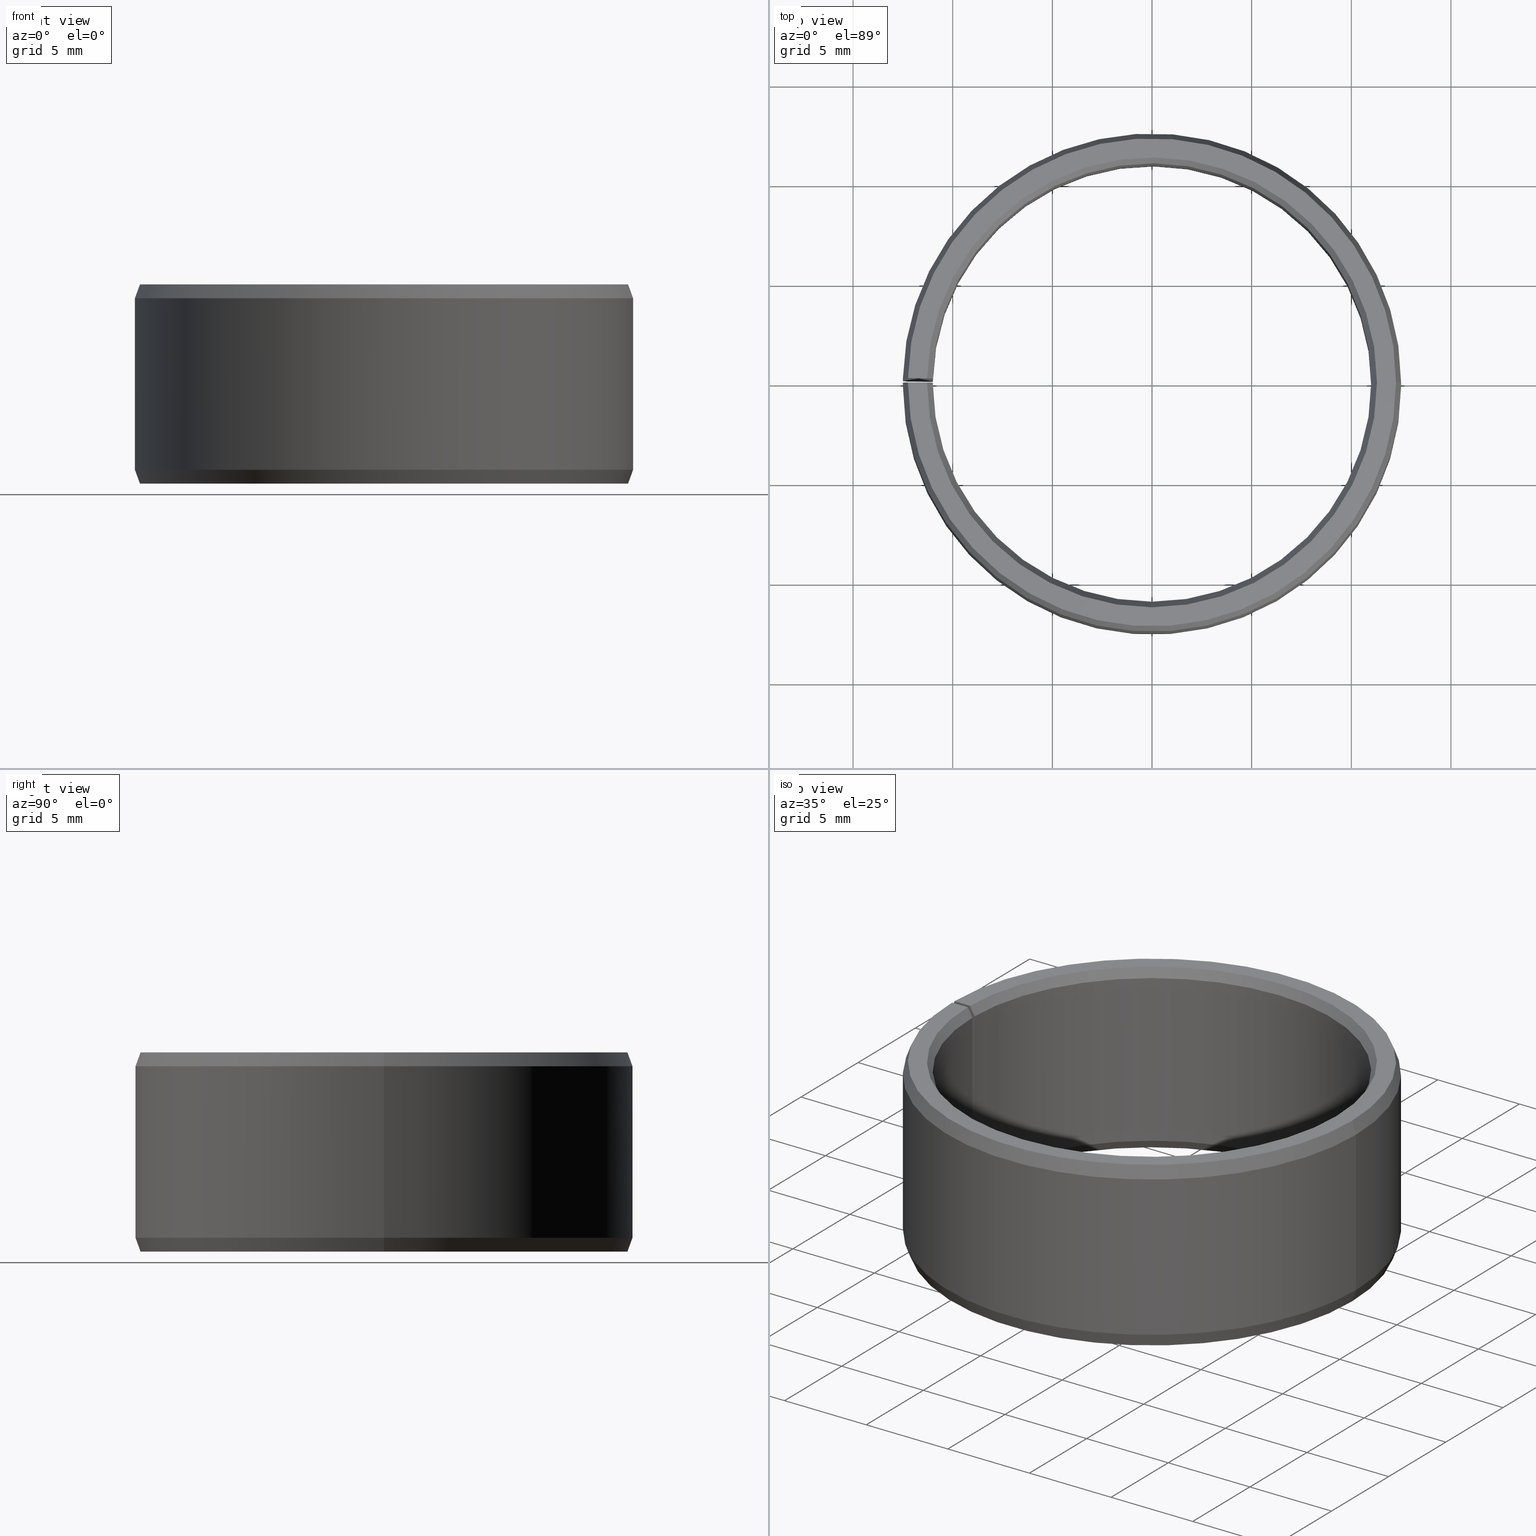
[diagram: canonical four-view strip — front | top / right | iso, engineering-drawing reading convention]
A machine part, canonical four-view strip (front | top / right | iso — engineering-drawing reading convention). The complete STEP part file that produces these views, byte-faithful:
ISO-10303-21;
HEADER;
FILE_DESCRIPTION(('STEP AP203'),'1');
FILE_NAME('400-BM2210LMB.stp','2016-09-20T00:43:16',(' '),(' '),'Spatial InterOp 3D',' ',' ');
FILE_SCHEMA(('CONFIG_CONTROL_DESIGN'));
ENDSEC;
DATA;
#1=DESIGN_CONTEXT('',#27,'design');
#2=APPLICATION_PROTOCOL_DEFINITION('INTERNATIONAL STANDARD','config_control_design',1994,#27);
#3=PRODUCT_CATEGORY_RELATIONSHIP('NONE','NONE',#28,#29);
#4=DATE_AND_TIME(#30,#31);
#5=DATE_TIME_ROLE('creation_date');
#6=DATE_TIME_ROLE('classification_date');
#7=PERSON_AND_ORGANIZATION_ROLE('creator');
#8=PERSON_AND_ORGANIZATION_ROLE('design_supplier');
#9=PERSON_AND_ORGANIZATION_ROLE('classification_officer');
#10=PERSON_AND_ORGANIZATION_ROLE('design_owner');
#11=APPROVAL_PERSON_ORGANIZATION(#32,#33,#34);
#12=APPROVAL_DATE_TIME(#4,#33);
#13=CC_DESIGN_APPROVAL(#33,(#35,#36,#37));
#14=CC_DESIGN_DATE_AND_TIME_ASSIGNMENT(#4,#5,(#37));
#15=CC_DESIGN_DATE_AND_TIME_ASSIGNMENT(#4,#6,(#35));
#16=CC_DESIGN_PERSON_AND_ORGANIZATION_ASSIGNMENT(#32,#10,(#38));
#17=CC_DESIGN_PERSON_AND_ORGANIZATION_ASSIGNMENT(#32,#7,(#37));
#18=CC_DESIGN_PERSON_AND_ORGANIZATION_ASSIGNMENT(#32,#7,(#36));
#19=CC_DESIGN_PERSON_AND_ORGANIZATION_ASSIGNMENT(#32,#8,(#36));
#20=CC_DESIGN_SECURITY_CLASSIFICATION(#35,(#36));
#21=CC_DESIGN_PERSON_AND_ORGANIZATION_ASSIGNMENT(#32,#9,(#35));
#22=SHAPE_DEFINITION_REPRESENTATION(#39,#40);
#23= (GEOMETRIC_REPRESENTATION_CONTEXT(3)GLOBAL_UNCERTAINTY_ASSIGNED_CONTEXT((#43))GLOBAL_UNIT_ASSIGNED_CONTEXT((#45,#46,#47))REPRESENTATION_CONTEXT('NONE','WORKSPACE'));
#27=APPLICATION_CONTEXT('CONFIGURATION CONTROLLED 3D DESIGNS OF MECHANICAL PARTS AND ASSEMBLIES');
#28=PRODUCT_CATEGORY('part','NONE');
#29=PRODUCT_RELATED_PRODUCT_CATEGORY('detail',' ',(#38));
#30=CALENDAR_DATE(2016,20,8);
#31=LOCAL_TIME(2,43,16.0,#49);
#32=PERSON_AND_ORGANIZATION(#50,#51);
#33=APPROVAL(#52,'SOLID MODEL');
#34=APPROVAL_ROLE('APPROVED');
#35=SECURITY_CLASSIFICATION('','',#53);
#36=PRODUCT_DEFINITION_FORMATION_WITH_SPECIFIED_SOURCE(' ','NONE',#38,.NOT_KNOWN.);
#37=PRODUCT_DEFINITION('NONE','NONE',#36,#1);
#38=PRODUCT('1','1','PART-1-DESC',(#54));
#39=PRODUCT_DEFINITION_SHAPE('NONE','NONE',#37);
#40=ADVANCED_BREP_SHAPE_REPRESENTATION('1',(#55,#56),#23);
#43=UNCERTAINTY_MEASURE_WITH_UNIT(LENGTH_MEASURE(1.0E-006),#45,'','');
#45= (CONVERSION_BASED_UNIT('MILLIMETRE',#59)LENGTH_UNIT()NAMED_UNIT(#62));
#46= (NAMED_UNIT(#64)PLANE_ANGLE_UNIT()SI_UNIT($,.RADIAN.));
#47= (NAMED_UNIT(#64)SOLID_ANGLE_UNIT()SI_UNIT($,.STERADIAN.));
#49=COORDINATED_UNIVERSAL_TIME_OFFSET(1,0,.AHEAD.);
#50=PERSON('','UNSPECIFIED',$,$,$,$);
#51=ORGANIZATION('UNSPECIFIED','UNSPECIFIED','UNSPECIFIED');
#52=APPROVAL_STATUS('approved');
#53=SECURITY_CLASSIFICATION_LEVEL('unclassified');
#54=MECHANICAL_CONTEXT('',#27,'mechanical');
#55=MANIFOLD_SOLID_BREP('1',#70);
#56=AXIS2_PLACEMENT_3D('',#71,#72,#73);
#59=LENGTH_MEASURE_WITH_UNIT(LENGTH_MEASURE(1.0),#74);
#62=DIMENSIONAL_EXPONENTS(1.0,0.0,0.0,0.0,0.0,0.0,0.0);
#64=DIMENSIONAL_EXPONENTS(0.0,0.0,0.0,0.0,0.0,0.0,0.0);
#70=CLOSED_SHELL('',(#75,#76,#77,#78,#79,#80,#81,#82,#83,#84,#85,#86,#87,#88,#89,#90));
#71=CARTESIAN_POINT('',(0.0,0.0,0.0));
#72=DIRECTION('',(0.0,0.0,1.0));
#73=DIRECTION('',(1.0,0.0,0.0));
#74= (NAMED_UNIT(#62)LENGTH_UNIT()SI_UNIT(.MILLI.,.METRE.));
#75=ADVANCED_FACE('',(#92),#93,.F.);
#76=ADVANCED_FACE('',(#94),#95,.F.);
#77=ADVANCED_FACE('',(#96),#97,.T.);
#78=ADVANCED_FACE('',(#98),#99,.T.);
#79=ADVANCED_FACE('',(#100),#101,.T.);
#80=ADVANCED_FACE('',(#102),#103,.F.);
#81=ADVANCED_FACE('',(#104),#105,.F.);
#82=ADVANCED_FACE('',(#106),#107,.T.);
#83=ADVANCED_FACE('',(#108),#109,.T.);
#84=ADVANCED_FACE('',(#110),#111,.T.);
#85=ADVANCED_FACE('',(#112),#113,.T.);
#86=ADVANCED_FACE('',(#114),#115,.T.);
#87=ADVANCED_FACE('',(#116),#117,.F.);
#88=ADVANCED_FACE('',(#118),#119,.F.);
#89=ADVANCED_FACE('',(#120),#121,.T.);
#90=ADVANCED_FACE('',(#122),#123,.F.);
#92=FACE_OUTER_BOUND('',#124,.T.);
#93=CYLINDRICAL_SURFACE('',#125,11.0);
#94=FACE_OUTER_BOUND('',#126,.T.);
#95=CONICAL_SURFACE('',#127,11.1443375672974,0.523598775598306);
#96=FACE_OUTER_BOUND('',#128,.T.);
#97=CONICAL_SURFACE('',#129,12.3726104180068,0.349065850398867);
#98=FACE_OUTER_BOUND('',#130,.T.);
#99=CYLINDRICAL_SURFACE('',#131,12.5);
#100=FACE_OUTER_BOUND('',#132,.T.);
#101=CONICAL_SURFACE('',#133,12.3726104180068,0.349065850398867);
#102=FACE_OUTER_BOUND('',#134,.T.);
#103=CONICAL_SURFACE('',#135,11.1443375672974,0.523598775598309);
#104=FACE_OUTER_BOUND('',#136,.T.);
#105=CONICAL_SURFACE('',#137,11.1443375672974,0.523598775598309);
#106=FACE_OUTER_BOUND('',#138,.T.);
#107=PLANE('',#139);
#108=FACE_OUTER_BOUND('',#140,.T.);
#109=CONICAL_SURFACE('',#141,12.3726104180068,0.349065850398867);
#110=FACE_OUTER_BOUND('',#142,.T.);
#111=CYLINDRICAL_SURFACE('',#143,12.5);
#112=FACE_OUTER_BOUND('',#144,.T.);
#113=CONICAL_SURFACE('',#145,12.3726104180068,0.349065850398867);
#114=FACE_OUTER_BOUND('',#146,.T.);
#115=PLANE('',#147);
#116=FACE_OUTER_BOUND('',#148,.T.);
#117=CONICAL_SURFACE('',#149,11.1443375672974,0.523598775598306);
#118=FACE_OUTER_BOUND('',#150,.T.);
#119=CYLINDRICAL_SURFACE('',#151,11.0);
#120=FACE_OUTER_BOUND('',#152,.T.);
#121=PLANE('',#153);
#122=FACE_OUTER_BOUND('',#154,.T.);
#123=PLANE('',#155);
#124=EDGE_LOOP('',(#156,#157,#158,#159));
#125=AXIS2_PLACEMENT_3D('',#160,#161,#162);
#126=EDGE_LOOP('',(#163,#164,#165,#166));
#127=AXIS2_PLACEMENT_3D('',#167,#168,#169);
#128=EDGE_LOOP('',(#170,#171,#172,#173));
#129=AXIS2_PLACEMENT_3D('',#174,#175,#176);
#130=EDGE_LOOP('',(#177,#178,#179,#180));
#131=AXIS2_PLACEMENT_3D('',#181,#182,#183);
#132=EDGE_LOOP('',(#184,#185,#186,#187));
#133=AXIS2_PLACEMENT_3D('',#188,#189,#190);
#134=EDGE_LOOP('',(#191,#192,#193,#194));
#135=AXIS2_PLACEMENT_3D('',#195,#196,#197);
#136=EDGE_LOOP('',(#198,#199,#200,#201));
#137=AXIS2_PLACEMENT_3D('',#202,#203,#204);
#138=EDGE_LOOP('',(#205,#206,#207,#208,#209,#210));
#139=AXIS2_PLACEMENT_3D('',#211,#212,#213);
#140=EDGE_LOOP('',(#214,#215,#216,#217));
#141=AXIS2_PLACEMENT_3D('',#218,#219,#220);
#142=EDGE_LOOP('',(#221,#222,#223,#224));
#143=AXIS2_PLACEMENT_3D('',#225,#226,#227);
#144=EDGE_LOOP('',(#228,#229,#230,#231));
#145=AXIS2_PLACEMENT_3D('',#232,#233,#234);
#146=EDGE_LOOP('',(#235,#236,#237,#238,#239,#240));
#147=AXIS2_PLACEMENT_3D('',#241,#242,#243);
#148=EDGE_LOOP('',(#244,#245,#246,#247));
#149=AXIS2_PLACEMENT_3D('',#248,#249,#250);
#150=EDGE_LOOP('',(#251,#252,#253,#254));
#151=AXIS2_PLACEMENT_3D('',#255,#256,#257);
#152=EDGE_LOOP('',(#258,#259,#260,#261,#262,#263,#264,#265));
#153=AXIS2_PLACEMENT_3D('',#266,#267,#268);
#154=EDGE_LOOP('',(#269,#270,#271,#272,#273,#274,#275,#276));
#155=AXIS2_PLACEMENT_3D('',#277,#278,#279);
#156=ORIENTED_EDGE('',*,*,#280,.F.);
#157=ORIENTED_EDGE('',*,*,#281,.T.);
#158=ORIENTED_EDGE('',*,*,#282,.T.);
#159=ORIENTED_EDGE('',*,*,#283,.F.);
#160=CARTESIAN_POINT('',(3.09684024814451E-015,-3.50247784057173E-015,5.0));
#161=DIRECTION('',(5.48707263966375E-016,-6.09939603923743E-016,1.0));
#162=DIRECTION('',(-1.0,1.89882151931499E-015,5.48707263966376E-016));
#163=ORIENTED_EDGE('',*,*,#284,.F.);
#164=ORIENTED_EDGE('',*,*,#285,.T.);
#165=ORIENTED_EDGE('',*,*,#286,.T.);
#166=ORIENTED_EDGE('',*,*,#281,.F.);
#167=CARTESIAN_POINT('',(5.70319975198479E-015,-6.10883734441202E-015,9.75));
#168=DIRECTION('',(5.48707263966375E-016,-6.09939603923743E-016,1.0));
#169=DIRECTION('',(-1.0,1.89882151931499E-015,5.48707263966376E-016));
#170=ORIENTED_EDGE('',*,*,#287,.F.);
#171=ORIENTED_EDGE('',*,*,#288,.F.);
#172=ORIENTED_EDGE('',*,*,#289,.F.);
#173=ORIENTED_EDGE('',*,*,#290,.T.);
#174=CARTESIAN_POINT('',(5.64832902558815E-015,-6.05396661801538E-015,9.65));
#175=DIRECTION('',(-5.48707263966375E-016,6.09939603923743E-016,-1.0));
#176=DIRECTION('',(-1.0,1.89882151931499E-015,5.48707263966376E-016));
#177=ORIENTED_EDGE('',*,*,#291,.F.);
#178=ORIENTED_EDGE('',*,*,#290,.F.);
#179=ORIENTED_EDGE('',*,*,#292,.F.);
#180=ORIENTED_EDGE('',*,*,#293,.T.);
#181=CARTESIAN_POINT('',(3.09684024814451E-015,-3.50247784057173E-015,5.0));
#182=DIRECTION('',(5.48707263966375E-016,-6.09939603923743E-016,1.0));
#183=DIRECTION('',(-1.0,1.89882151931499E-015,5.48707263966376E-016));
#184=ORIENTED_EDGE('',*,*,#294,.F.);
#185=ORIENTED_EDGE('',*,*,#293,.F.);
#186=ORIENTED_EDGE('',*,*,#295,.F.);
#187=ORIENTED_EDGE('',*,*,#296,.T.);
#188=CARTESIAN_POINT('',(5.45351470700869E-016,-9.50989063128085E-016,0.350000000000002));
#189=DIRECTION('',(5.48707263966375E-016,-6.09939603923743E-016,1.0));
#190=DIRECTION('',(-1.0,1.89882151931499E-015,5.48707263966376E-016));
#191=ORIENTED_EDGE('',*,*,#297,.F.);
#192=ORIENTED_EDGE('',*,*,#283,.T.);
#193=ORIENTED_EDGE('',*,*,#298,.T.);
#194=ORIENTED_EDGE('',*,*,#299,.F.);
#195=CARTESIAN_POINT('',(4.90480744304232E-016,-8.96118336731448E-016,0.250000000000002));
#196=DIRECTION('',(-5.48707263966375E-016,6.09939603923743E-016,-1.0));
#197=DIRECTION('',(-1.0,1.89882151931499E-015,5.48707263966376E-016));
#198=ORIENTED_EDGE('',*,*,#297,.T.);
#199=ORIENTED_EDGE('',*,*,#300,.F.);
#200=ORIENTED_EDGE('',*,*,#301,.F.);
#201=ORIENTED_EDGE('',*,*,#302,.T.);
#202=CARTESIAN_POINT('',(4.90480744304232E-016,-8.96118336731448E-016,0.250000000000002));
#203=DIRECTION('',(-5.48707263966375E-016,6.09939603923743E-016,-1.0));
#204=DIRECTION('',(-1.0,1.89882151931499E-015,5.48707263966376E-016));
#205=ORIENTED_EDGE('',*,*,#303,.T.);
#206=ORIENTED_EDGE('',*,*,#304,.F.);
#207=ORIENTED_EDGE('',*,*,#296,.F.);
#208=ORIENTED_EDGE('',*,*,#305,.F.);
#209=ORIENTED_EDGE('',*,*,#300,.T.);
#210=ORIENTED_EDGE('',*,*,#299,.T.);
#211=CARTESIAN_POINT('',(-11.7669479853042,2.22996382857295E-014,7.73279603807488E-015));
#212=DIRECTION('',(-6.37304531528356E-016,6.09939603923744E-016,-1.0));
#213=DIRECTION('',(1.0,-1.89882151931499E-015,-6.37304531528357E-016));
#214=ORIENTED_EDGE('',*,*,#294,.T.);
#215=ORIENTED_EDGE('',*,*,#304,.T.);
#216=ORIENTED_EDGE('',*,*,#306,.T.);
#217=ORIENTED_EDGE('',*,*,#307,.F.);
#218=CARTESIAN_POINT('',(5.45351470700869E-016,-9.50989063128085E-016,0.350000000000002));
#219=DIRECTION('',(5.48707263966375E-016,-6.09939603923743E-016,1.0));
#220=DIRECTION('',(-1.0,1.89882151931499E-015,5.48707263966376E-016));
#221=ORIENTED_EDGE('',*,*,#291,.T.);
#222=ORIENTED_EDGE('',*,*,#307,.T.);
#223=ORIENTED_EDGE('',*,*,#308,.T.);
#224=ORIENTED_EDGE('',*,*,#309,.F.);
#225=CARTESIAN_POINT('',(3.09684024814451E-015,-3.50247784057173E-015,5.0));
#226=DIRECTION('',(5.48707263966375E-016,-6.09939603923743E-016,1.0));
#227=DIRECTION('',(-1.0,1.89882151931499E-015,5.48707263966376E-016));
#228=ORIENTED_EDGE('',*,*,#287,.T.);
#229=ORIENTED_EDGE('',*,*,#309,.T.);
#230=ORIENTED_EDGE('',*,*,#310,.T.);
#231=ORIENTED_EDGE('',*,*,#311,.F.);
#232=CARTESIAN_POINT('',(5.64832902558815E-015,-6.05396661801538E-015,9.65));
#233=DIRECTION('',(-5.48707263966375E-016,6.09939603923743E-016,-1.0));
#234=DIRECTION('',(-1.0,1.89882151931499E-015,5.48707263966376E-016));
#235=ORIENTED_EDGE('',*,*,#312,.T.);
#236=ORIENTED_EDGE('',*,*,#285,.F.);
#237=ORIENTED_EDGE('',*,*,#313,.F.);
#238=ORIENTED_EDGE('',*,*,#314,.F.);
#239=ORIENTED_EDGE('',*,*,#288,.T.);
#240=ORIENTED_EDGE('',*,*,#311,.T.);
#241=CARTESIAN_POINT('',(-11.7669479853042,1.68125656460658E-014,10.0));
#242=DIRECTION('',(5.48707263966375E-016,-6.09939603923743E-016,1.0));
#243=DIRECTION('',(-1.0,1.89882151931499E-015,5.48707263966376E-016));
#244=ORIENTED_EDGE('',*,*,#284,.T.);
#245=ORIENTED_EDGE('',*,*,#315,.F.);
#246=ORIENTED_EDGE('',*,*,#316,.F.);
#247=ORIENTED_EDGE('',*,*,#313,.T.);
#248=CARTESIAN_POINT('',(5.70319975198479E-015,-6.10883734441202E-015,9.75));
#249=DIRECTION('',(5.48707263966375E-016,-6.09939603923743E-016,1.0));
#250=DIRECTION('',(-1.0,1.89882151931499E-015,5.48707263966376E-016));
#251=ORIENTED_EDGE('',*,*,#280,.T.);
#252=ORIENTED_EDGE('',*,*,#302,.F.);
#253=ORIENTED_EDGE('',*,*,#317,.F.);
#254=ORIENTED_EDGE('',*,*,#315,.T.);
#255=CARTESIAN_POINT('',(3.09684024814451E-015,-3.50247784057173E-015,5.0));
#256=DIRECTION('',(5.48707263966375E-016,-6.09939603923743E-016,1.0));
#257=DIRECTION('',(-1.0,1.89882151931499E-015,5.48707263966376E-016));
#258=ORIENTED_EDGE('',*,*,#298,.F.);
#259=ORIENTED_EDGE('',*,*,#282,.F.);
#260=ORIENTED_EDGE('',*,*,#286,.F.);
#261=ORIENTED_EDGE('',*,*,#312,.F.);
#262=ORIENTED_EDGE('',*,*,#310,.F.);
#263=ORIENTED_EDGE('',*,*,#308,.F.);
#264=ORIENTED_EDGE('',*,*,#306,.F.);
#265=ORIENTED_EDGE('',*,*,#303,.F.);
#266=CARTESIAN_POINT('',(-11.7464352171137,0.205034789389844,5.00000000000001));
#267=DIRECTION('',(-0.0174524064372856,-0.999847695156391,-5.39038105024556E-016));
#268=DIRECTION('',(5.49775915650417E-016,-5.48716589948336E-016,1.0));
#269=ORIENTED_EDGE('',*,*,#317,.T.);
#270=ORIENTED_EDGE('',*,*,#301,.T.);
#271=ORIENTED_EDGE('',*,*,#305,.T.);
#272=ORIENTED_EDGE('',*,*,#295,.T.);
#273=ORIENTED_EDGE('',*,*,#292,.T.);
#274=ORIENTED_EDGE('',*,*,#289,.T.);
#275=ORIENTED_EDGE('',*,*,#314,.T.);
#276=ORIENTED_EDGE('',*,*,#316,.T.);
#277=CARTESIAN_POINT('',(-11.7482245286132,2.17504568788199E-014,5.00000000000001));
#278=DIRECTION('',(-1.89882151931464E-015,-1.0,-5.48707263966374E-016));
#279=DIRECTION('',(5.48707263966375E-016,-5.48707263966375E-016,1.0));
#280=EDGE_CURVE('',#318,#319,#320,.T.);
#281=EDGE_CURVE('',#318,#321,#322,.T.);
#282=EDGE_CURVE('',#321,#323,#324,.T.);
#283=EDGE_CURVE('',#319,#323,#325,.T.);
#284=EDGE_CURVE('',#326,#318,#327,.T.);
#285=EDGE_CURVE('',#326,#328,#329,.T.);
#286=EDGE_CURVE('',#328,#321,#330,.T.);
#287=EDGE_CURVE('',#331,#332,#333,.T.);
#288=EDGE_CURVE('',#334,#331,#335,.T.);
#289=EDGE_CURVE('',#336,#334,#337,.T.);
#290=EDGE_CURVE('',#336,#332,#338,.T.);
#291=EDGE_CURVE('',#332,#339,#340,.T.);
#292=EDGE_CURVE('',#341,#336,#342,.T.);
#293=EDGE_CURVE('',#341,#339,#343,.T.);
#294=EDGE_CURVE('',#339,#344,#345,.T.);
#295=EDGE_CURVE('',#346,#341,#347,.T.);
#296=EDGE_CURVE('',#346,#344,#348,.T.);
#297=EDGE_CURVE('',#319,#349,#350,.T.);
#298=EDGE_CURVE('',#323,#351,#352,.T.);
#299=EDGE_CURVE('',#349,#351,#353,.T.);
#300=EDGE_CURVE('',#354,#349,#355,.T.);
#301=EDGE_CURVE('',#356,#354,#357,.T.);
#302=EDGE_CURVE('',#356,#319,#358,.T.);
#303=EDGE_CURVE('',#351,#359,#360,.T.);
#304=EDGE_CURVE('',#344,#359,#361,.T.);
#305=EDGE_CURVE('',#354,#346,#362,.T.);
#306=EDGE_CURVE('',#359,#363,#364,.T.);
#307=EDGE_CURVE('',#339,#363,#365,.T.);
#308=EDGE_CURVE('',#363,#366,#367,.T.);
#309=EDGE_CURVE('',#332,#366,#368,.T.);
#310=EDGE_CURVE('',#366,#369,#370,.T.);
#311=EDGE_CURVE('',#331,#369,#371,.T.);
#312=EDGE_CURVE('',#369,#328,#372,.T.);
#313=EDGE_CURVE('',#373,#326,#374,.T.);
#314=EDGE_CURVE('',#334,#373,#375,.T.);
#315=EDGE_CURVE('',#376,#318,#377,.T.);
#316=EDGE_CURVE('',#373,#376,#378,.T.);
#317=EDGE_CURVE('',#376,#356,#379,.T.);
#318=VERTEX_POINT('',#380);
#319=VERTEX_POINT('',#381);
#320=LINE('',#382,#383);
#321=VERTEX_POINT('',#384);
#322=CIRCLE('',#385,11.0);
#323=VERTEX_POINT('',#386);
#324=LINE('',#387,#388);
#325=CIRCLE('',#389,11.0);
#326=VERTEX_POINT('',#390);
#327=LINE('',#391,#392);
#328=VERTEX_POINT('',#393);
#329=CIRCLE('',#394,11.2886751345948);
#330=LINE('',#395,#396);
#331=VERTEX_POINT('',#397);
#332=VERTEX_POINT('',#398);
#333=LINE('',#399,#400);
#334=VERTEX_POINT('',#401);
#335=CIRCLE('',#402,12.2452208360137);
#336=VERTEX_POINT('',#403);
#337=LINE('',#404,#405);
#338=CIRCLE('',#406,12.5);
#339=VERTEX_POINT('',#407);
#340=LINE('',#408,#409);
#341=VERTEX_POINT('',#410);
#342=LINE('',#411,#412);
#343=CIRCLE('',#413,12.5);
#344=VERTEX_POINT('',#414);
#345=LINE('',#415,#416);
#346=VERTEX_POINT('',#417);
#347=LINE('',#418,#419);
#348=CIRCLE('',#420,12.2452208360137);
#349=VERTEX_POINT('',#421);
#350=LINE('',#422,#423);
#351=VERTEX_POINT('',#424);
#352=LINE('',#425,#426);
#353=CIRCLE('',#427,11.2886751345948);
#354=VERTEX_POINT('',#428);
#355=CIRCLE('',#429,11.2886751345948);
#356=VERTEX_POINT('',#430);
#357=LINE('',#431,#432);
#358=CIRCLE('',#433,11.0);
#359=VERTEX_POINT('',#434);
#360=LINE('',#435,#436);
#361=CIRCLE('',#437,12.2452208360137);
#362=LINE('',#438,#439);
#363=VERTEX_POINT('',#440);
#364=LINE('',#441,#442);
#365=CIRCLE('',#443,12.5);
#366=VERTEX_POINT('',#444);
#367=LINE('',#445,#446);
#368=CIRCLE('',#447,12.5);
#369=VERTEX_POINT('',#448);
#370=LINE('',#449,#450);
#371=CIRCLE('',#451,12.2452208360137);
#372=LINE('',#452,#453);
#373=VERTEX_POINT('',#454);
#374=CIRCLE('',#455,11.2886751345948);
#375=LINE('',#456,#457);
#376=VERTEX_POINT('',#458);
#377=CIRCLE('',#459,11.0);
#378=LINE('',#460,#461);
#379=LINE('',#462,#463);
#380=CARTESIAN_POINT('',(11.0,-2.8190500634958E-014,9.49999999999999));
#381=CARTESIAN_POINT('',(11.0,-2.32827514292393E-014,0.499999999999996));
#382=CARTESIAN_POINT('',(11.0,-2.57366260320987E-014,4.99999999999999));
#383=VECTOR('',#464,1.0);
#384=CARTESIAN_POINT('',(-10.9983246467203,0.191976470810136,9.50000000000001));
#385=AXIS2_PLACEMENT_3D('',#465,#466,#467);
#386=CARTESIAN_POINT('',(-10.9983246467203,0.191976470810141,0.500000000000008));
#387=CARTESIAN_POINT('',(-10.9983246467203,0.191976470810136,9.50000000000001));
#388=VECTOR('',#468,10.0);
#389=AXIS2_PLACEMENT_3D('',#469,#470,#471);
#390=CARTESIAN_POINT('',(11.2886751345948,-2.90789655025372E-014,10.0));
#391=CARTESIAN_POINT('',(11.1443375672974,-2.86347330687476E-014,9.75));
#392=VECTOR('',#472,1.0);
#393=CARTESIAN_POINT('',(-11.2869558146939,0.197014546587422,10.0));
#394=AXIS2_PLACEMENT_3D('',#473,#474,#475);
#395=CARTESIAN_POINT('',(-11.2869558146939,0.197014546587422,10.0));
#396=VECTOR('',#476,10.0);
#397=CARTESIAN_POINT('',(12.2452208360137,-3.10185413617433E-014,10.0));
#398=CARTESIAN_POINT('',(12.5,-3.13912956278153E-014,9.29999999999999));
#399=CARTESIAN_POINT('',(12.3726104180068,-3.10625533043785E-014,9.65));
#400=VECTOR('',#477,1.0);
#401=CARTESIAN_POINT('',(-12.2452208360137,1.74790388489456E-014,10.0));
#402=AXIS2_PLACEMENT_3D('',#478,#479,#480);
#403=CARTESIAN_POINT('',(-12.5,1.82181686909682E-014,9.30000000000001));
#404=CARTESIAN_POINT('',(-12.5,1.82181686909682E-014,9.30000000000001));
#405=VECTOR('',#481,9.99999999999999);
#406=AXIS2_PLACEMENT_3D('',#482,#483,#484);
#407=CARTESIAN_POINT('',(12.5,-2.64305454148729E-014,0.699999999999994));
#408=CARTESIAN_POINT('',(12.5,-2.87685553309432E-014,4.99999999999999));
#409=VECTOR('',#485,1.0);
#410=CARTESIAN_POINT('',(-12.5,2.29370511610791E-014,0.700000000000008));
#411=CARTESIAN_POINT('',(-12.5,2.29370511610791E-014,0.700000000000008));
#412=VECTOR('',#486,10.0);
#413=AXIS2_PLACEMENT_3D('',#487,#488,#489);
#414=CARTESIAN_POINT('',(12.2452208360137,-2.54886060841094E-014,-5.33126284081167E-015));
#415=CARTESIAN_POINT('',(12.3726104180068,-2.59595757494912E-014,0.349999999999995));
#416=VECTOR('',#490,1.0);
#417=CARTESIAN_POINT('',(-12.2452208360137,2.29661114886094E-014,8.03760149313898E-015));
#418=CARTESIAN_POINT('',(-12.2452208360137,2.29661114886094E-014,8.03760149313898E-015));
#419=VECTOR('',#491,10.0);
#420=AXIS2_PLACEMENT_3D('',#492,#493,#494);
#421=CARTESIAN_POINT('',(11.2886751345948,-2.35612766928947E-014,-4.80639926612734E-015));
#422=CARTESIAN_POINT('',(11.1443375672974,-2.3422014061067E-014,0.249999999999996));
#423=VECTOR('',#495,1.0);
#424=CARTESIAN_POINT('',(-11.2869558146939,0.197014546587428,7.70767945087344E-015));
#425=CARTESIAN_POINT('',(-10.9983246467203,0.191976470810141,0.500000000000008));
#426=VECTOR('',#496,10.0);
#427=AXIS2_PLACEMENT_3D('',#497,#498,#499);
#428=CARTESIAN_POINT('',(-11.2886751345948,2.16331650828497E-014,7.42799058301078E-015));
#429=AXIS2_PLACEMENT_3D('',#500,#501,#502);
#430=CARTESIAN_POINT('',(-11.0,2.0956542659611E-014,0.500000000000008));
#431=CARTESIAN_POINT('',(-11.0,2.0956542659611E-014,0.500000000000008));
#432=VECTOR('',#503,10.0);
#433=AXIS2_PLACEMENT_3D('',#504,#505,#506);
#434=CARTESIAN_POINT('',(-12.2433558295693,0.213708570944427,8.24264543289731E-015));
#435=CARTESIAN_POINT('',(-11.2869558146939,0.197014546587428,7.56230584152884E-015));
#436=VECTOR('',#507,9.99999999999999);
#437=AXIS2_PLACEMENT_3D('',#508,#509,#510);
#438=CARTESIAN_POINT('',(-11.2886751345948,2.16331650828497E-014,7.42799058301078E-015));
#439=VECTOR('',#511,10.0);
#440=CARTESIAN_POINT('',(-12.4980961894549,0.218155080466068,0.700000000000008));
#441=CARTESIAN_POINT('',(-12.2433558295693,0.213708570944427,8.18201915899658E-015));
#442=VECTOR('',#512,10.0);
#443=AXIS2_PLACEMENT_3D('',#513,#514,#515);
#444=CARTESIAN_POINT('',(-12.4980961894549,0.218155080466063,9.30000000000001));
#445=CARTESIAN_POINT('',(-12.4980961894549,0.218155080466068,0.700000000000008));
#446=VECTOR('',#516,10.0);
#447=AXIS2_PLACEMENT_3D('',#517,#518,#519);
#448=CARTESIAN_POINT('',(-12.2433558295693,0.213708570944422,10.0));
#449=CARTESIAN_POINT('',(-12.4980961894549,0.218155080466063,9.30000000000001));
#450=VECTOR('',#520,9.99999999999999);
#451=AXIS2_PLACEMENT_3D('',#521,#522,#523);
#452=CARTESIAN_POINT('',(-12.2433558295693,0.213708570944422,10.0));
#453=VECTOR('',#524,9.99999999999999);
#454=CARTESIAN_POINT('',(-11.2886751345948,1.61460924431859E-014,10.0));
#455=AXIS2_PLACEMENT_3D('',#525,#526,#527);
#456=CARTESIAN_POINT('',(-12.2452208360137,1.74790388489456E-014,10.0));
#457=VECTOR('',#528,10.0);
#458=CARTESIAN_POINT('',(-11.0,1.60181772839136E-014,9.50000000000001));
#459=AXIS2_PLACEMENT_3D('',#529,#530,#531);
#460=CARTESIAN_POINT('',(-11.2886751345948,1.61460924431859E-014,10.0));
#461=VECTOR('',#532,10.0);
#462=CARTESIAN_POINT('',(-11.0,1.60181772839136E-014,9.50000000000001));
#463=VECTOR('',#533,10.0);
#464=DIRECTION('',(-5.48707263966375E-016,6.09939603923743E-016,-1.0));
#465=CARTESIAN_POINT('',(5.56602293599319E-015,-5.97166052842042E-015,9.5));
#466=DIRECTION('',(5.48707263966375E-016,-6.09939603923743E-016,1.0));
#467=DIRECTION('',(-1.0,1.89882151931499E-015,5.48707263966376E-016));
#468=DIRECTION('',(-5.49775915650417E-016,5.48716589948337E-016,-1.0));
#469=CARTESIAN_POINT('',(6.27657560295825E-016,-1.03329515272304E-015,0.500000000000002));
#470=DIRECTION('',(5.48707263966375E-016,-6.09939603923743E-016,1.0));
#471=DIRECTION('',(-1.0,1.89882151931499E-015,5.48707263966376E-016));
#472=DIRECTION('',(-0.500000000000007,1.53886629138705E-015,-0.866025403784434));
#473=CARTESIAN_POINT('',(5.84037656797638E-015,-6.24601416040361E-015,10.0));
#474=DIRECTION('',(5.48707263966375E-016,-6.09939603923743E-016,1.0));
#475=DIRECTION('',(-1.0,1.89882151931499E-015,5.48707263966376E-016));
#476=DIRECTION('',(0.499923847578202,-0.00872620321864242,-0.866025403784435));
#477=DIRECTION('',(0.342020143325669,-1.18164850630525E-016,-0.939692620785908));
#478=CARTESIAN_POINT('',(5.84037656797638E-015,-6.24601416040361E-015,10.0));
#479=DIRECTION('',(5.48707263966375E-016,-6.09939603923743E-016,1.0));
#480=DIRECTION('',(-1.0,1.89882151931499E-015,5.48707263966376E-016));
#481=DIRECTION('',(0.34202014332567,-1.16505137510681E-015,0.939692620785908));
#482=CARTESIAN_POINT('',(5.45628148319992E-015,-5.86191907562715E-015,9.3));
#483=DIRECTION('',(5.48707263966375E-016,-6.09939603923743E-016,1.0));
#484=DIRECTION('',(-1.0,1.89882151931499E-015,5.48707263966376E-016));
#485=DIRECTION('',(-5.48707263966375E-016,6.09939603923743E-016,-1.0));
#486=DIRECTION('',(5.48707263966375E-016,-5.48707263966376E-016,1.0));
#487=CARTESIAN_POINT('',(7.373990130891E-016,-1.14303660551632E-015,0.700000000000001));
#488=DIRECTION('',(5.48707263966375E-016,-6.09939603923743E-016,1.0));
#489=DIRECTION('',(-1.0,1.89882151931499E-015,5.48707263966376E-016));
#490=DIRECTION('',(-0.342020143325671,1.26447634049497E-015,-0.939692620785908));
#491=DIRECTION('',(-0.34202014332567,1.33819041265149E-016,0.939692620785908));
#492=CARTESIAN_POINT('',(3.53303928312638E-016,-7.58941520739854E-016,1.40055521273414E-015));
#493=DIRECTION('',(5.48707263966375E-016,-6.09939603923743E-016,1.0));
#494=DIRECTION('',(-1.0,1.89882151931499E-015,5.48707263966376E-016));
#495=DIRECTION('',(0.500000000000008,-4.82419907842701E-016,-0.866025403784434));
#496=DIRECTION('',(-0.499923847578205,0.00872620321864341,-0.866025403784433));
#497=CARTESIAN_POINT('',(3.53303928312638E-016,-7.58941520739854E-016,1.40055521273414E-015));
#498=DIRECTION('',(5.48707263966375E-016,-6.09939603923743E-016,1.0));
#499=DIRECTION('',(-1.0,1.89882151931499E-015,5.48707263966376E-016));
#500=CARTESIAN_POINT('',(3.53303928312638E-016,-7.58941520739854E-016,1.40055521273414E-015));
#501=DIRECTION('',(5.48707263966375E-016,-6.09939603923743E-016,1.0));
#502=DIRECTION('',(-1.0,1.89882151931499E-015,5.48707263966376E-016));
#503=DIRECTION('',(-0.500000000000009,1.42460518949344E-015,-0.866025403784433));
#504=CARTESIAN_POINT('',(6.27657560295825E-016,-1.03329515272304E-015,0.500000000000002));
#505=DIRECTION('',(5.48707263966375E-016,-6.09939603923743E-016,1.0));
#506=DIRECTION('',(-1.0,1.89882151931499E-015,5.48707263966376E-016));
#507=DIRECTION('',(-0.999847695156391,0.0174524064372856,6.47865874624205E-016));
#508=CARTESIAN_POINT('',(3.53303928312638E-016,-7.58941520739854E-016,1.40055521273414E-015));
#509=DIRECTION('',(5.48707263966375E-016,-6.09939603923743E-016,1.0));
#510=DIRECTION('',(-1.0,1.89882151931499E-015,5.48707263966376E-016));
#511=DIRECTION('',(-1.0,1.89882151931499E-015,6.37304531528357E-016));
#512=DIRECTION('',(-0.341968052001229,0.00596907455105774,0.939692620785908));
#513=CARTESIAN_POINT('',(7.373990130891E-016,-1.14303660551632E-015,0.700000000000001));
#514=DIRECTION('',(5.48707263966375E-016,-6.09939603923743E-016,1.0));
#515=DIRECTION('',(-1.0,1.89882151931499E-015,5.48707263966376E-016));
#516=DIRECTION('',(5.49775915650417E-016,-5.48716589948337E-016,1.0));
#517=CARTESIAN_POINT('',(5.45628148319992E-015,-5.86191907562715E-015,9.3));
#518=DIRECTION('',(5.48707263966375E-016,-6.09939603923743E-016,1.0));
#519=DIRECTION('',(-1.0,1.89882151931499E-015,5.48707263966376E-016));
#520=DIRECTION('',(0.34196805200123,-0.00596907455105875,0.939692620785908));
#521=CARTESIAN_POINT('',(5.84037656797638E-015,-6.24601416040361E-015,10.0));
#522=DIRECTION('',(5.48707263966375E-016,-6.09939603923743E-016,1.0));
#523=DIRECTION('',(-1.0,1.89882151931499E-015,5.48707263966376E-016));
#524=DIRECTION('',(0.999847695156391,-0.0174524064372856,-5.59268607062224E-016));
#525=CARTESIAN_POINT('',(5.84037656797638E-015,-6.24601416040361E-015,10.0));
#526=DIRECTION('',(5.48707263966375E-016,-6.09939603923743E-016,1.0));
#527=DIRECTION('',(-1.0,1.89882151931499E-015,5.48707263966376E-016));
#528=DIRECTION('',(1.0,-1.89882151931499E-015,-5.48707263966376E-016));
#529=CARTESIAN_POINT('',(5.56602293599319E-015,-5.97166052842042E-015,9.5));
#530=DIRECTION('',(5.48707263966375E-016,-6.09939603923743E-016,1.0));
#531=DIRECTION('',(-1.0,1.89882151931499E-015,5.48707263966376E-016));
#532=DIRECTION('',(0.500000000000006,-4.74216329821572E-016,-0.866025403784435));
#533=DIRECTION('',(-5.48707263966375E-016,5.48707263966376E-016,-1.0));
ENDSEC;
END-ISO-10303-21;
